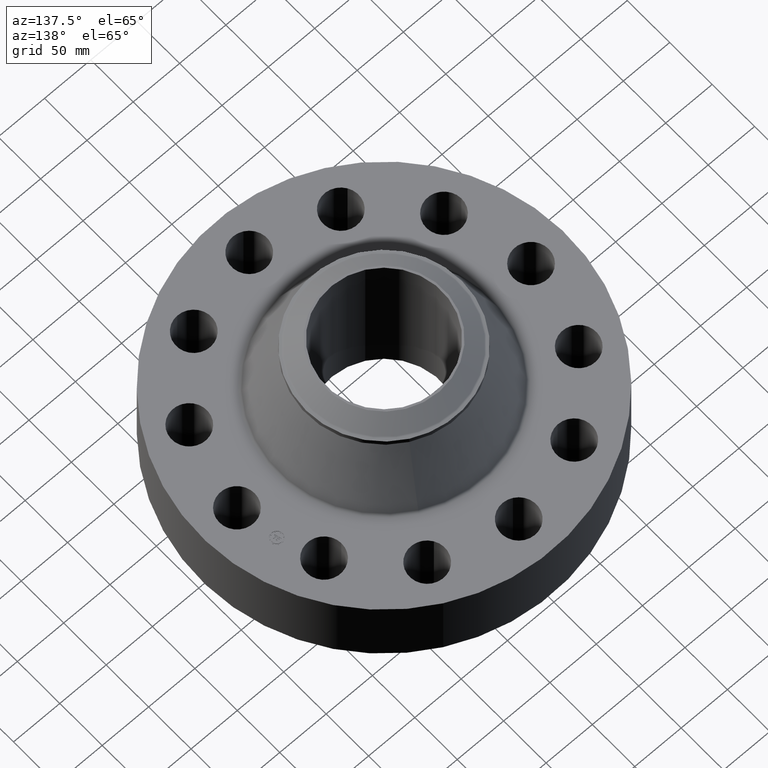
[diagram: clean part render]
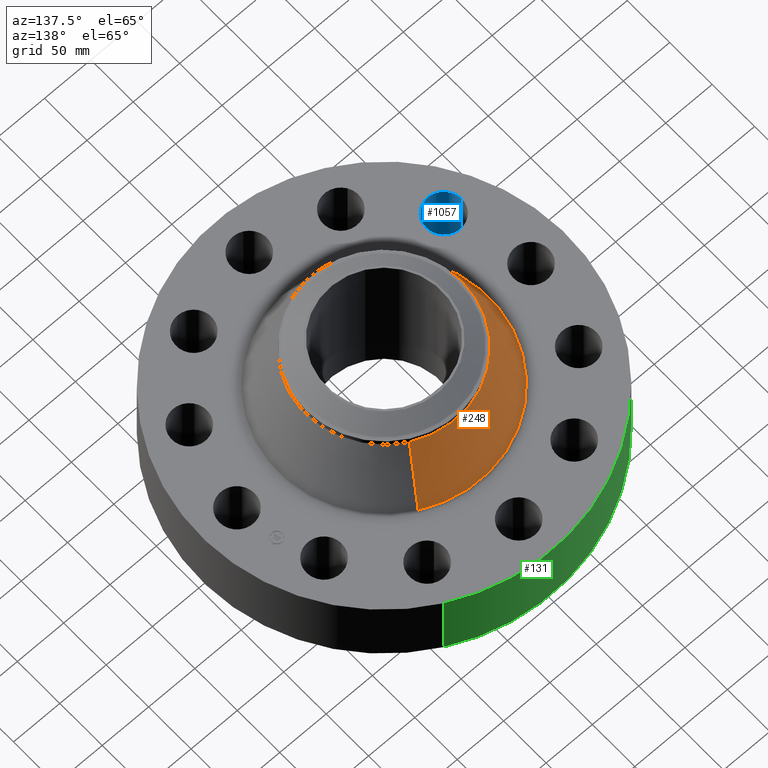
[diagram: same view with three faces highlighted in distinct colors, each labeled with its STEP entity id]
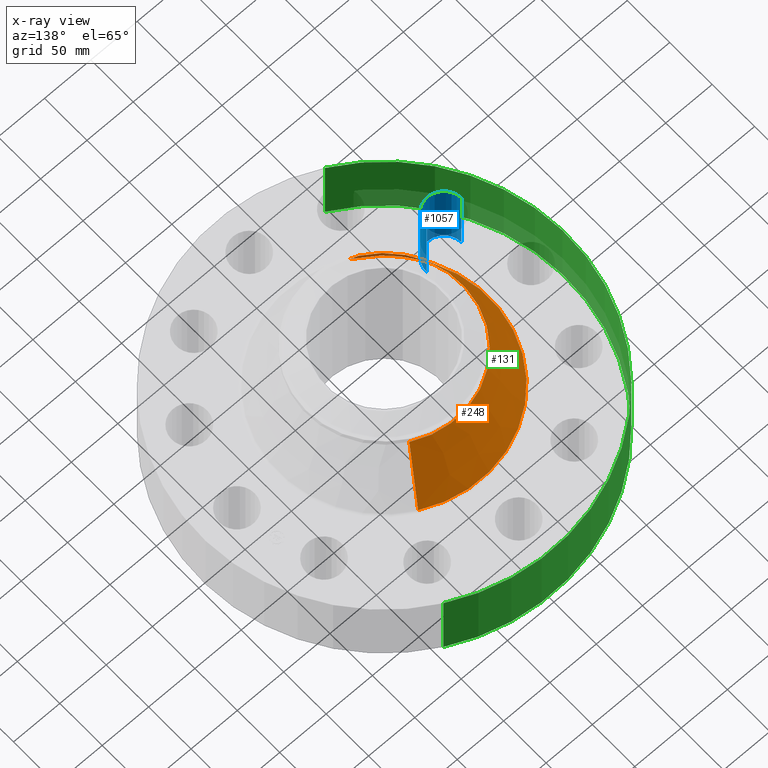
[diagram: x-ray of the same camera — body ghosted, the three highlighted faces saturated]
A machine part, auxiliary view with three faces highlighted in distinct colors.
The next image is the same camera in x-ray (body ghosted, the three faces saturated) — at least one of them is partly hidden behind the body in this view.
Their STEP definitions:

[orange] entity #248 — the highlighted conical surface has half-angle 23.469 deg.
#196=AXIS2_PLACEMENT_3D('Circle Axis2P3D',#194,#195,$) ;
#209=AXIS2_PLACEMENT_3D('Cone Axis2P3D',#206,#207,#208) ;
#239=AXIS2_PLACEMENT_3D('Circle Axis2P3D',#237,#238,$) ;
#167=CARTESIAN_POINT('Vertex',(2.14238429059,3.92160813911,3.32220928044)) ;
#174=CARTESIAN_POINT('Vertex',(-2.14238429059,-3.92160813911,3.32220928044)) ;
#194=CARTESIAN_POINT('Axis2P3D Location',(0.,0.,3.32220928044)) ;
#206=CARTESIAN_POINT('Axis2P3D Location',(0.,0.,5.97932502706)) ;
#211=CARTESIAN_POINT('Line Origine',(1.86583997553,3.4153971659,4.65076715375)) ;
#215=CARTESIAN_POINT('Vertex',(1.58929566048,2.90918619268,5.97932502706)) ;
#222=CARTESIAN_POINT('Vertex',(-1.58929566048,-2.90918619268,5.97932502706)) ;
#225=CARTESIAN_POINT('Line Origine',(-1.86583997553,-3.4153971659,4.65076715375)) ;
#237=CARTESIAN_POINT('Axis2P3D Location',(0.,0.,5.97932502706)) ;
#195=DIRECTION('Axis2P3D Direction',(0.,0.,-0.0393700787402)) ;
#207=DIRECTION('Axis2P3D Direction',(0.,0.,-0.0393700787402)) ;
#208=DIRECTION('Axis2P3D XDirection',(-0.0188750212049,-0.0345504945626,0.)) ;
#212=DIRECTION('Vector Direction',(0.00751709037822,0.0137599416403,-0.0361131618431)) ;
#226=DIRECTION('Vector Direction',(-0.00751709037822,-0.0137599416403,-0.0361131618431)) ;
#238=DIRECTION('Axis2P3D Direction',(0.,0.,-0.0393700787402)) ;
#213=VECTOR('Line Direction',#212,0.0393700787402) ;
#227=VECTOR('Line Direction',#226,0.0393700787402) ;
#243=ORIENTED_EDGE('',*,*,#198,.F.) ;
#244=ORIENTED_EDGE('',*,*,#229,.T.) ;
#245=ORIENTED_EDGE('',*,*,#241,.T.) ;
#246=ORIENTED_EDGE('',*,*,#217,.F.) ;
#248=ADVANCED_FACE('PartBody',(#247),#210,.T.) ;
#197=CIRCLE('generated circle',#196,4.46864865987) ;
#240=CIRCLE('generated circle',#239,3.31500000001) ;
#210=CONICAL_SURFACE('Cone',#209,3.31500000001,0.409614770547) ;
#198=EDGE_CURVE('',#175,#168,#197,.T.) ;
#217=EDGE_CURVE('',#168,#216,#214,.F.) ;
#229=EDGE_CURVE('',#175,#223,#228,.F.) ;
#241=EDGE_CURVE('',#223,#216,#240,.T.) ;
#242=EDGE_LOOP('',(#243,#244,#245,#246)) ;
#247=FACE_OUTER_BOUND('',#242,.T.) ;
#214=LINE('Line',#211,#213) ;
#228=LINE('Line',#225,#227) ;
#168=VERTEX_POINT('',#167) ;
#175=VERTEX_POINT('',#174) ;
#216=VERTEX_POINT('',#215) ;
#223=VERTEX_POINT('',#222) ;

[blue] entity #1057 — the highlighted cylindrical surface (edge-blend (fillet) strip) has radius 19.05 mm, axis along (-0, 0, -1).
#601=AXIS2_PLACEMENT_3D('Circle Axis2P3D',#599,#600,$) ;
#1030=AXIS2_PLACEMENT_3D('Cylinder Axis2P3D',#1027,#1028,#1029) ;
#1048=AXIS2_PLACEMENT_3D('Circle Axis2P3D',#1046,#1047,$) ;
#599=CARTESIAN_POINT('Axis2P3D Location',(-5.41265877367,-3.12500000001,0.)) ;
#603=CARTESIAN_POINT('Vertex',(-4.66286760231,-3.10730256104,0.)) ;
#605=CARTESIAN_POINT('Vertex',(-6.16244994504,-3.14269743898,0.)) ;
#1027=CARTESIAN_POINT('Axis2P3D Location',(-5.41265877367,-3.12500000001,3.24606299214)) ;
#1032=CARTESIAN_POINT('Line Origine',(-4.66286760231,-3.10730256104,1.62500000001)) ;
#1036=CARTESIAN_POINT('Vertex',(-4.66286760231,-3.10730256104,3.25000000001)) ;
#1039=CARTESIAN_POINT('Line Origine',(-6.16244994504,-3.14269743898,1.62500000001)) ;
#1043=CARTESIAN_POINT('Vertex',(-6.16244994504,-3.14269743898,3.25000000001)) ;
#1046=CARTESIAN_POINT('Axis2P3D Location',(-5.41265877367,-3.12500000001,3.25000000001)) ;
#600=DIRECTION('Axis2P3D Direction',(0.,0.,-0.0393700787402)) ;
#1028=DIRECTION('Axis2P3D Direction',(-0.,0.,-0.0393700787402)) ;
#1029=DIRECTION('Axis2P3D XDirection',(-0.039359116607,-0.000928999420902,0.)) ;
#1033=DIRECTION('Vector Direction',(0.,0.,-0.0393700787402)) ;
#1040=DIRECTION('Vector Direction',(0.,0.,-0.0393700787402)) ;
#1047=DIRECTION('Axis2P3D Direction',(-0.,0.,-0.0393700787402)) ;
#1034=VECTOR('Line Direction',#1033,0.0393700787402) ;
#1041=VECTOR('Line Direction',#1040,0.0393700787402) ;
#1052=ORIENTED_EDGE('',*,*,#1038,.F.) ;
#1053=ORIENTED_EDGE('',*,*,#607,.T.) ;
#1054=ORIENTED_EDGE('',*,*,#1045,.T.) ;
#1055=ORIENTED_EDGE('',*,*,#1050,.F.) ;
#1057=ADVANCED_FACE('PartBody',(#1056),#1031,.F.) ;
#602=CIRCLE('generated circle',#601,0.750000000003) ;
#1049=CIRCLE('generated circle',#1048,0.750000000003) ;
#1031=CYLINDRICAL_SURFACE('generated cylinder',#1030,0.750000000003) ;
#607=EDGE_CURVE('',#604,#606,#602,.T.) ;
#1038=EDGE_CURVE('',#604,#1037,#1035,.F.) ;
#1045=EDGE_CURVE('',#606,#1044,#1042,.F.) ;
#1050=EDGE_CURVE('',#1037,#1044,#1049,.T.) ;
#1051=EDGE_LOOP('',(#1052,#1053,#1054,#1055)) ;
#1056=FACE_OUTER_BOUND('',#1051,.T.) ;
#1035=LINE('Line',#1032,#1034) ;
#1042=LINE('Line',#1039,#1041) ;
#604=VERTEX_POINT('',#603) ;
#606=VERTEX_POINT('',#605) ;
#1037=VERTEX_POINT('',#1036) ;
#1044=VERTEX_POINT('',#1043) ;

[green] entity #131 — the highlighted cylindrical surface (partial cylindrical patch) has radius 196.85 mm, axis along (0, 0, -1).
#95=AXIS2_PLACEMENT_3D('Cylinder Axis2P3D',#92,#93,#94) ;
#99=AXIS2_PLACEMENT_3D('Circle Axis2P3D',#97,#98,$) ;
#115=AXIS2_PLACEMENT_3D('Circle Axis2P3D',#113,#114,$) ;
#92=CARTESIAN_POINT('Axis2P3D Location',(0.,0.,3.37500000001)) ;
#97=CARTESIAN_POINT('Axis2P3D Location',(0.,0.,5.59482469102E-016)) ;
#101=CARTESIAN_POINT('Vertex',(-3.7155479242,-6.80126485468,5.59482469102E-016)) ;
#103=CARTESIAN_POINT('Vertex',(3.7155479242,6.80126485468,5.59482469102E-016)) ;
#106=CARTESIAN_POINT('Line Origine',(-3.7155479242,-6.80126485468,1.62500000001)) ;
#110=CARTESIAN_POINT('Vertex',(-3.7155479242,-6.80126485468,3.25000000001)) ;
#113=CARTESIAN_POINT('Axis2P3D Location',(0.,0.,3.25000000001)) ;
#117=CARTESIAN_POINT('Vertex',(3.7155479242,6.80126485468,3.25000000001)) ;
#120=CARTESIAN_POINT('Line Origine',(3.7155479242,6.80126485468,1.62500000001)) ;
#93=DIRECTION('Axis2P3D Direction',(0.,0.,-0.0393700787402)) ;
#94=DIRECTION('Axis2P3D XDirection',(0.0188750212049,0.0345504945626,0.)) ;
#98=DIRECTION('Axis2P3D Direction',(0.,0.,-0.0393700787402)) ;
#107=DIRECTION('Vector Direction',(0.,0.,-0.0393700787402)) ;
#114=DIRECTION('Axis2P3D Direction',(0.,0.,-0.0393700787402)) ;
#121=DIRECTION('Vector Direction',(0.,0.,-0.0393700787402)) ;
#108=VECTOR('Line Direction',#107,0.0393700787402) ;
#122=VECTOR('Line Direction',#121,0.0393700787402) ;
#126=ORIENTED_EDGE('',*,*,#105,.F.) ;
#127=ORIENTED_EDGE('',*,*,#112,.T.) ;
#128=ORIENTED_EDGE('',*,*,#119,.T.) ;
#129=ORIENTED_EDGE('',*,*,#124,.F.) ;
#131=ADVANCED_FACE('PartBody',(#130),#96,.T.) ;
#100=CIRCLE('generated circle',#99,7.75000000003) ;
#116=CIRCLE('generated circle',#115,7.75000000003) ;
#96=CYLINDRICAL_SURFACE('generated cylinder',#95,7.75000000003) ;
#105=EDGE_CURVE('',#102,#104,#100,.T.) ;
#112=EDGE_CURVE('',#102,#111,#109,.F.) ;
#119=EDGE_CURVE('',#111,#118,#116,.T.) ;
#124=EDGE_CURVE('',#104,#118,#123,.F.) ;
#125=EDGE_LOOP('',(#126,#127,#128,#129)) ;
#130=FACE_OUTER_BOUND('',#125,.T.) ;
#109=LINE('Line',#106,#108) ;
#123=LINE('Line',#120,#122) ;
#102=VERTEX_POINT('',#101) ;
#104=VERTEX_POINT('',#103) ;
#111=VERTEX_POINT('',#110) ;
#118=VERTEX_POINT('',#117) ;